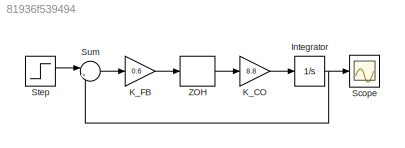
MODEL slx_81936f539494
KIND model
CONFIG AbsTol = auto
CONFIG EnableMultiTasking = off
CONFIG FixedStep = 1e-3
CONFIG MaxStep = auto
CONFIG MinStep = auto
CONFIG RelTol = 1e-3
CONFIG SampleTimeConstraint = Unconstrained
CONFIG SolverName = FixedStepAuto
CONFIG StartTime = 0.0
CONFIG StopTime = 10.0
BLOCK [Integrator] Integrator
BLOCK [Gain] K_CO
  Gain = 8.8
BLOCK [Gain] K_FB
  Gain = 0.6
BLOCK [Scope] Scope
  Floating = off
  NumInputPorts = 1
  ScopeSpecificationString = Simulink.scopes.TimeScopeBlockCfg('CurrentConfiguration', extmgr.ConfigurationSet(extmgr.Configuration('Core','General UI',true,'FigureColor',[1 1 1]),extmgr.Configuration('Core','Source UI',true),extmgr.Configuration('Sources','WiredSimulink',true),extmgr.Configuration('Visuals','Time Domain',true,'SerializedDisplays',{struct('MinYLimReal','-0.165','MaxYLimReal','1.485','YLabelReal','y(t)','MinYL...<+2353ch>
BLOCK [Step] Step
  SampleTime = 0
  Time = 0
BLOCK [Sum] Sum
  Inputs = |+-
BLOCK [ZeroOrderHold] ZOH
  SampleTime = 0.25
NET Integrator:1 -> Scope:1, Sum:2
LINE K_CO:1 -> Integrator:1
LINE K_FB:1 -> ZOH:1
LINE Step:1 -> Sum:1
LINE Sum:1 -> K_FB:1
LINE ZOH:1 -> K_CO:1
note: NET lines group one-source signal fan-out (src -> all destinations, sorted); 1:1 wires keep LINE
